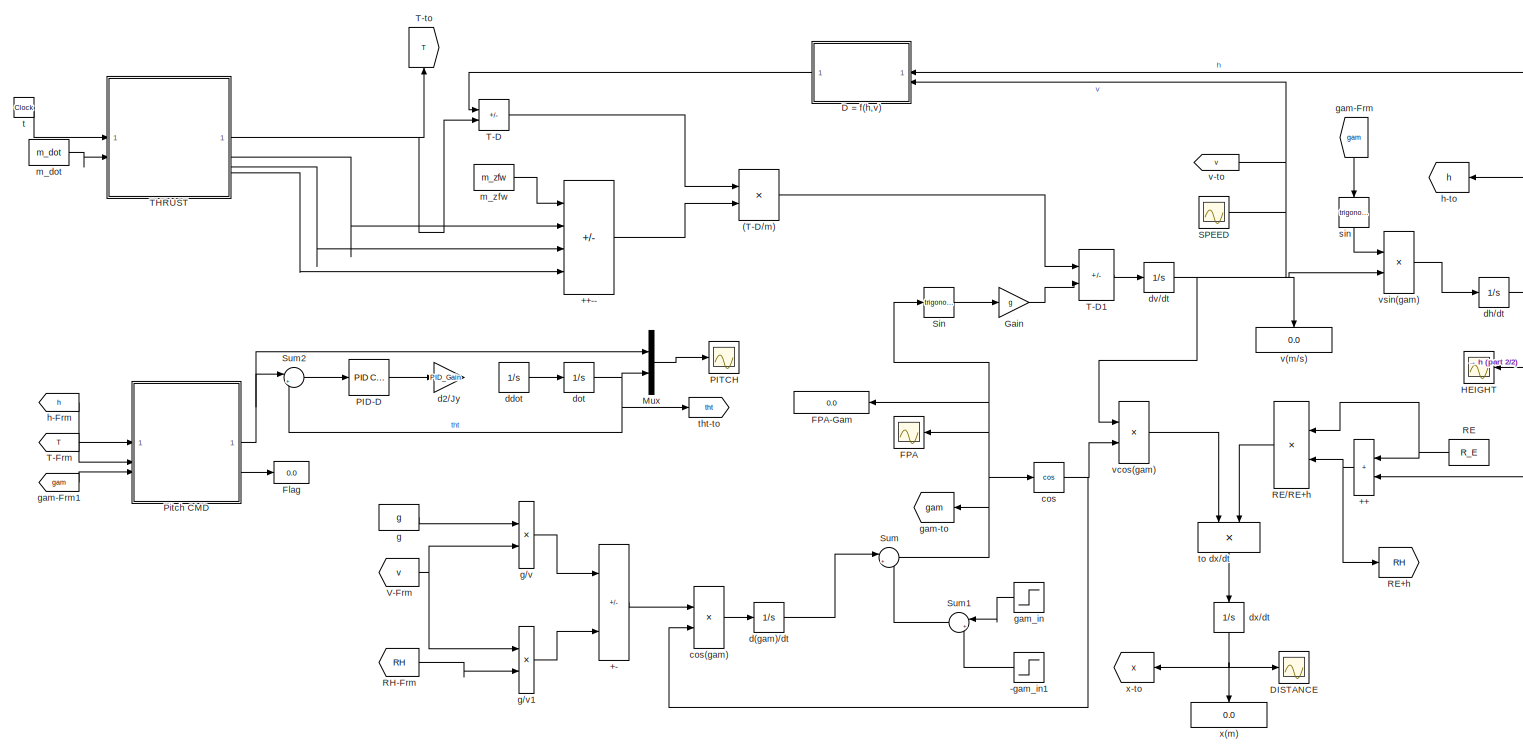
[diagram: root canvas - part 1/2, most of the canvas]
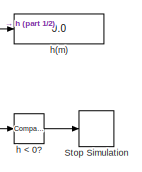
[diagram: root canvas - part 2/2, middle right region]
MODEL slx_3cd375db7f3d
KIND model
CONFIG AbsTol = auto
CONFIG EnableMultiTasking = off
CONFIG FixedStep = auto
CONFIG MaxStep = auto
CONFIG MinStep = auto
CONFIG RelTol = 1e-3
CONFIG SampleTimeConstraint = Unconstrained
CONFIG SolverName = ode45
CONFIG StartTime = 0.0
CONFIG StopTime = 350
BLOCK [Product] (T-D//m)
  Inputs = */
BLOCK [Sum] ++
  IconShape = rectangular
  NameLocation = top
BLOCK [Sum] ++--
  IconShape = rectangular
  Inputs = ++--
BLOCK [Sum] +-
  IconShape = rectangular
  Inputs = -++
BLOCK [Step] -gam_in1
  After = -gam_in
  Before = -gam_in
  NameLocation = top
  SampleTime = 0
  Time = t_turn+1
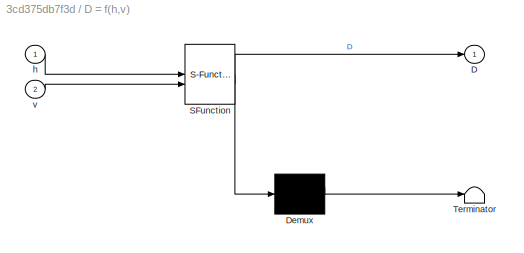
BLOCK [SubSystem] D = f(h,v)
  ErrorFcn = Stateflow.Translate.translate
  LibrarySourceBlock = simulink/User-Defined\nFunctions/MATLAB Function
  NameLocation = top
  PermitHierarchicalResolution = ExplicitOnly
  SFBlockType = MATLAB Function
  TreatAsAtomicUnit = on
BLOCK [Demux] D = f(h,v)/ Demux 
  Outputs = 1
BLOCK [S-Function] D = f(h,v)/ SFunction 
  EnableBusSupport = on
  FunctionName = sf_sfun
  PortCounts = [2 2]
  SFcnIsStateOwnerBlock = off
  SFunctionDeploymentMode = off
  Tag = Stateflow S-Function 3
BLOCK [Terminator] D = f(h,v)/ Terminator 
BLOCK [Outport] D = f(h,v)/D
BLOCK [Inport] D = f(h,v)/h
BLOCK [Inport] D = f(h,v)/v
  Port = 2
BLOCK [Scope] DISTANCE
  Floating = off
  NameLocation = top
  NumInputPorts = 1
  ScopeSpecificationString = Simulink.scopes.TimeScopeBlockCfg('CurrentConfiguration', extmgr.ConfigurationSet(extmgr.Configuration('Core','General UI',true),extmgr.Configuration('Core','Source UI',true),extmgr.Configuration('Sources','WiredSimulink',true,'DataLoggingVariableName','ScopeData2'),extmgr.Configuration('Visuals','Time Domain',true),extmgr.Configuration('Tools','Plot Navigation',true),extmgr.Configuration('Tools',...<+40ch>
BLOCK [Scope] FPA
  Floating = off
  NumInputPorts = 1
  ScopeSpecificationString = Simulink.scopes.TimeScopeBlockCfg('CurrentConfiguration', extmgr.ConfigurationSet(extmgr.Configuration('Core','General UI',true),extmgr.Configuration('Core','Source UI',true),extmgr.Configuration('Sources','WiredSimulink',true,'DataLoggingVariableName','ScopeData3'),extmgr.Configuration('Visuals','Time Domain',true,'SerializedDisplays',{struct('MinYLimReal','-1.57386','MaxYLimReal','1.9202','YLabe...<+1358ch>
BLOCK [Display] FPA-Gam
  Decimation = 1
  NameLocation = top
BLOCK [Display] Flag
  Decimation = 1
BLOCK [Gain] Gain
  Gain = g
BLOCK [Scope] HEIGHT
  Floating = off
  NumInputPorts = 1
  ScopeSpecificationString = Simulink.scopes.TimeScopeBlockCfg('CurrentConfiguration', extmgr.ConfigurationSet(extmgr.Configuration('Core','General UI',true),extmgr.Configuration('Core','Source UI',true),extmgr.Configuration('Sources','WiredSimulink',true),extmgr.Configuration('Visuals','Time Domain',true,'SerializedDisplays',{struct('MinYLimReal','-3645.14059','MaxYLimReal','32806.26531','YLabelReal','','MinYLimMag','  0.000...<+1347ch>
BLOCK [Mux] Mux
  DisplayOption = bar
  Inputs = 2
BLOCK [Reference] PID-D  REF=slpidlib/PID Controller
  LibrarySourceBlock = simulink/Continuous/PID Controller
  SourceBlock = slpidlib/PID Controller
  SourceType = PID 1dof
BLOCK [Scope] PITCH
  Floating = off
  NameLocation = top
  NumInputPorts = 1
  ScopeSpecificationString = Simulink.scopes.TimeScopeBlockCfg('CurrentConfiguration', extmgr.ConfigurationSet(extmgr.Configuration('Core','General UI',true),extmgr.Configuration('Core','Source UI',true),extmgr.Configuration('Sources','WiredSimulink',true,'DataLoggingVariableName','ScopeData4'),extmgr.Configuration('Visuals','Time Domain',true),extmgr.Configuration('Tools','Plot Navigation',true),extmgr.Configuration('Tools',...<+40ch>
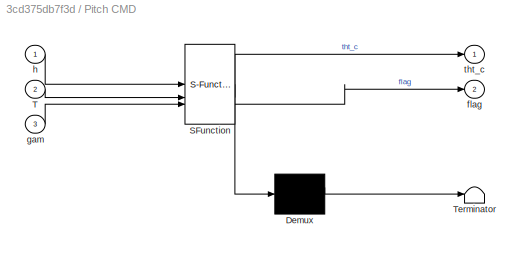
BLOCK [SubSystem] Pitch CMD
  ErrorFcn = Stateflow.Translate.translate
  LibrarySourceBlock = simulink/User-Defined\nFunctions/MATLAB Function
  PermitHierarchicalResolution = ExplicitOnly
  SFBlockType = MATLAB Function
  TreatAsAtomicUnit = on
BLOCK [Demux] Pitch CMD/ Demux 
  Outputs = 1
BLOCK [S-Function] Pitch CMD/ SFunction 
  EnableBusSupport = on
  FunctionName = sf_sfun
  PortCounts = [3 3]
  SFcnIsStateOwnerBlock = off
  SFunctionDeploymentMode = off
  Tag = Stateflow S-Function 1
BLOCK [Terminator] Pitch CMD/ Terminator 
BLOCK [Inport] Pitch CMD/T
  Port = 2
BLOCK [Outport] Pitch CMD/flag
  Port = 2
BLOCK [Inport] Pitch CMD/gam
  Port = 3
BLOCK [Inport] Pitch CMD/h
BLOCK [Outport] Pitch CMD/tht_c
BLOCK [Constant] RE
  NameLocation = top
  Value = R_E
BLOCK [Goto] RE+h
  GotoTag = RH
BLOCK [Product] RE//RE+h
  Inputs = */
  NameLocation = top
BLOCK [From] RH-Frm
  GotoTag = RH
BLOCK [Scope] SPEED
  Floating = off
  NumInputPorts = 1
  ScopeSpecificationString = Simulink.scopes.TimeScopeBlockCfg('CurrentConfiguration', extmgr.ConfigurationSet(extmgr.Configuration('Core','General UI',true),extmgr.Configuration('Core','Source UI',true),extmgr.Configuration('Sources','WiredSimulink',true,'DataLoggingVariableName','ScopeData1'),extmgr.Configuration('Visuals','Time Domain',true,'SerializedDisplays',{struct('MinYLimReal','-154.14105','MaxYLimReal','1387.36944',...<+1378ch>
BLOCK [Trigonometry] Sin
BLOCK [Stop] Stop Simulation
BLOCK [Sum] Sum
  Inputs = |++
BLOCK [Sum] Sum1
  Inputs = |++
  NameLocation = top
BLOCK [Sum] Sum2
  Inputs = |+-
BLOCK [Sum] T-D
  IconShape = rectangular
  Inputs = -+
BLOCK [Sum] T-D1
  IconShape = rectangular
  Inputs = +-
BLOCK [From] T-Frm
  GotoTag = T
BLOCK [Goto] T-to
  GotoTag = T
  NameLocation = right
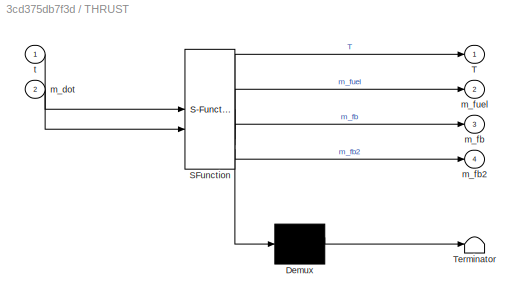
BLOCK [SubSystem] THRUST
  ErrorFcn = Stateflow.Translate.translate
  LibrarySourceBlock = simulink/User-Defined\nFunctions/MATLAB Function
  PermitHierarchicalResolution = ExplicitOnly
  SFBlockType = MATLAB Function
  TreatAsAtomicUnit = on
BLOCK [Demux] THRUST/ Demux 
  Outputs = 1
BLOCK [S-Function] THRUST/ SFunction 
  EnableBusSupport = on
  FunctionName = sf_sfun
  PortCounts = [2 5]
  SFcnIsStateOwnerBlock = off
  SFunctionDeploymentMode = off
  Tag = Stateflow S-Function 2
BLOCK [Terminator] THRUST/ Terminator 
BLOCK [Outport] THRUST/T
BLOCK [Inport] THRUST/m_dot
  Port = 2
BLOCK [Outport] THRUST/m_fb
  Port = 3
BLOCK [Outport] THRUST/m_fb2
  Port = 4
BLOCK [Outport] THRUST/m_fuel
  Port = 2
BLOCK [Inport] THRUST/t
BLOCK [From] V-Frm
  GotoTag = v
BLOCK [Trigonometry] cos
  Operator = cos
BLOCK [Product] cos(gam)
BLOCK [Integrator] d(gam)//dt
  InitialCondition = gam_0
BLOCK [Gain] d2//Jy
  Gain = PID_Gain
BLOCK [Integrator] ddot
  InitialCondition = gam_0
BLOCK [Integrator] dh//dt
  InitialCondition = h_0
BLOCK [Integrator] dot
  InitialCondition = gam_0
BLOCK [Integrator] dv//dt
  InitialCondition = v_0
BLOCK [Integrator] dx//dt
  InitialCondition = h_0
  NameLocation = left
BLOCK [Constant] g
  Value = g
BLOCK [Product] g//v
  Inputs = */
BLOCK [Product] g//v1
  Inputs = */
BLOCK [From] gam-Frm
  GotoTag = gam
  NameLocation = left
BLOCK [From] gam-Frm1
  GotoTag = gam
BLOCK [Goto] gam-to
  GotoTag = gam
  NameLocation = top
BLOCK [Step] gam_in
  After = 0
  Before = gam_in
  NameLocation = top
  SampleTime = 0
  Time = t_turn
BLOCK [Reference] h < 0?  REF=simulink/Logic and Bit
Operations/Compare
To Zero
  SourceBlock = simulink/Logic and Bit\nOperations/Compare\nTo Zero
  SourceType = Compare To Zero
BLOCK [Display] h(m)
  Decimation = 1
BLOCK [From] h-Frm
  GotoTag = h
BLOCK [Goto] h-to
  GotoTag = h
  NameLocation = top
BLOCK [Constant] m_dot
  Value = m_dot
BLOCK [Constant] m_zfw
  Value = m_zfw
BLOCK [Trigonometry] sin
  NameLocation = left
BLOCK [Clock] t
BLOCK [Goto] tht-to
  GotoTag = tht
BLOCK [Product] to dx//dt
  NameLocation = left
BLOCK [Display] v(m//s)
  Decimation = 1
  NameLocation = left
BLOCK [Goto] v-to
  GotoTag = v
  NameLocation = top
BLOCK [Product] vcos(gam)
BLOCK [Product] vsin(gam)
BLOCK [Display] x(m)
  Decimation = 1
  NameLocation = left
BLOCK [Goto] x-to
  GotoTag = x
  NameLocation = top
LINE (T-D//m):1 -> T-D1:1
LINE ++--:1 -> (T-D//m):2
NET ++:1 -> RE+h:1, RE//RE+h:2
LINE +-:1 -> cos(gam):1
LINE -gam_in1:1 -> Sum1:2
LINE D = f(h,v):1 -> T-D:1
LINE Gain:1 -> T-D1:2
LINE Mux:1 -> PITCH:1
LINE PID-D:1 -> d2//Jy:1
NET Pitch CMD:1 -> Mux:1, Sum2:1
LINE Pitch CMD:2 -> Flag:1
LINE RE//RE+h:1 -> to dx//dt:2
NET RE:1 -> ++:1, RE//RE+h:1
LINE RH-Frm:1 -> g//v1:2
LINE Sin:1 -> Gain:1
LINE Sum1:1 -> Sum:2
LINE Sum2:1 -> PID-D:1
NET Sum:1 -> FPA-Gam:1, FPA:1, Sin:1, cos:1, gam-to:1
LINE T-D1:1 -> dv//dt:1
LINE T-D:1 -> (T-D//m):1
LINE T-Frm:1 -> Pitch CMD:2
NET THRUST:1 -> T-D:2, T-to:1
LINE THRUST:2 -> ++--:2
LINE THRUST:3 -> ++--:3
LINE THRUST:4 -> ++--:4
NET V-Frm:1 -> g//v1:1, g//v:2
LINE cos(gam):1 -> d(gam)//dt:1
NET cos:1 -> cos(gam):2, vcos(gam):2
LINE d(gam)//dt:1 -> Sum:1
LINE ddot:1 -> dot:1
NET dh//dt:1 -> ++:2, D = f(h,v):1, HEIGHT:1, h < 0?:1, h(m):1, h-to:1
NET dot:1 -> Mux:2, Sum2:2, tht-to:1
NET dv//dt:1 -> D = f(h,v):2, SPEED:1, v(m//s):1, v-to:1, vcos(gam):1, vsin(gam):2
NET dx//dt:1 -> DISTANCE:1, x(m):1, x-to:1
LINE g//v1:1 -> +-:3
LINE g//v:1 -> +-:1
LINE g:1 -> g//v:1
LINE gam-Frm1:1 -> Pitch CMD:3
LINE gam-Frm:1 -> sin:1
LINE gam_in:1 -> Sum1:1
LINE h < 0?:1 -> Stop Simulation:1
LINE h-Frm:1 -> Pitch CMD:1
LINE m_dot:1 -> THRUST:2
LINE m_zfw:1 -> ++--:1
LINE sin:1 -> vsin(gam):1
LINE t:1 -> THRUST:1
LINE to dx//dt:1 -> dx//dt:1
LINE vcos(gam):1 -> to dx//dt:1
LINE vsin(gam):1 -> dh//dt:1
note: NET lines group one-source signal fan-out (src -> all destinations, sorted); 1:1 wires keep LINE
CHART Pitch CMD states=1 transitions=1
  STATE_LABEL 'eML_blk_kernel()'
  STATE_LABEL 'SCRIPT:\nfunction [tht_c, flag] = fcn(h, T, gam)\n% Code Generation\n\npersistent f\npersistent t_c\n\nif isempty(f)\n    f = 0;\nend\n\nif T <=0\n    t_c = gam+pi;\n    if t_c > pi\n        t_c = pi;\n    end\n    f = 1;\nelseif T <= 0 && h < 1000\n    t_c = pi/2;\nelse\n    t_c = gam;\nend\n\nflag = f;\ntht_c = t_c;\n\n'
CHART THRUST states=1 transitions=1
  STATE_LABEL 'eML_blk_kernel()'
  STATE_LABEL 'SCRIPT:\nfunction [T, m_fuel, m_fb, m_fb2] = fcn(t, m_dot)\n% Codegeneration\n\npersistent mfb\npersistent mfb2\n\nif isempty(mfb)\n    mfb = 0;\nend\n\nif isempty(mfb2)\n    mfb2 = 0;\nend\n\nmfuel = 21491.26;\n\nif mfb <= 0.65*mfuel\n    THR = 346961.2;\n    mfb = t*m_dot;\nelse\n    THR = 0;\nend\n\n\nif (125<t) && (t < 295)\n    THR = -110000;\n    mfb2 = (t - 125)*(m_dot/3)\nend\n\nT = THR;\nm_fb = mfb;\nm_fb2 = mfb2\nm_fuel...<+10ch>'
CHART D = f(h,v) states=1 transitions=1
  STATE_LABEL 'eML_blk_kernel()'
  STATE_LABEL 'SCRIPT:\nfunction D = fcn(h, v)\n% Code Generation\n\nCD = 0.075;     %Drag Coefficient\nDi = 1.5;\nA = pi * Di^2/4;\n\n%Density ISA Model from NASA website\n%# Troposphere\nif h <= 11000\n    T = 15.04 - 0.00649*h;\n    p = 101.29 * ((T+273.1)/288.08)^5.258;\n%Lower Stratosphere\nelseif (11000 < h) && (h <+ 25000)\n    T = -56.46;\n    p = 22.65 * exp(1.73-0.000157*h);\nelse\n    T = -131.21 + 0.00299*h;\n    p = 2...<+119ch>'
CHART  states=0 transitions=0
CHART  states=0 transitions=0
CHART  states=0 transitions=0
